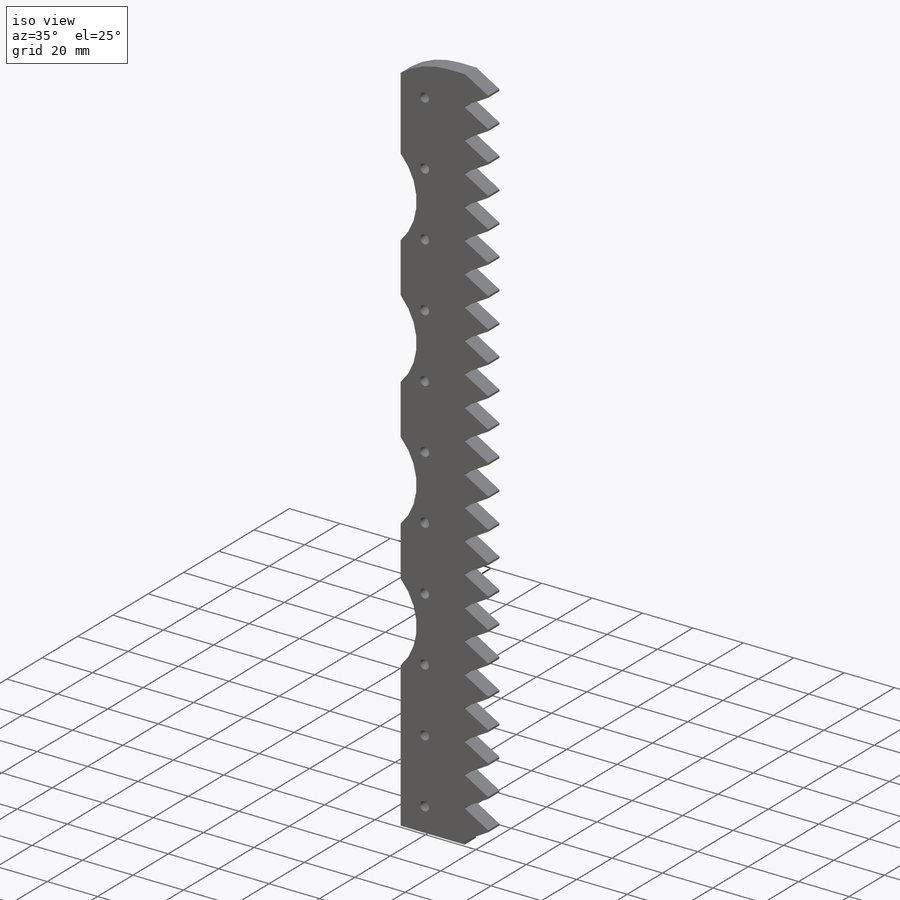
[diagram: iso view]
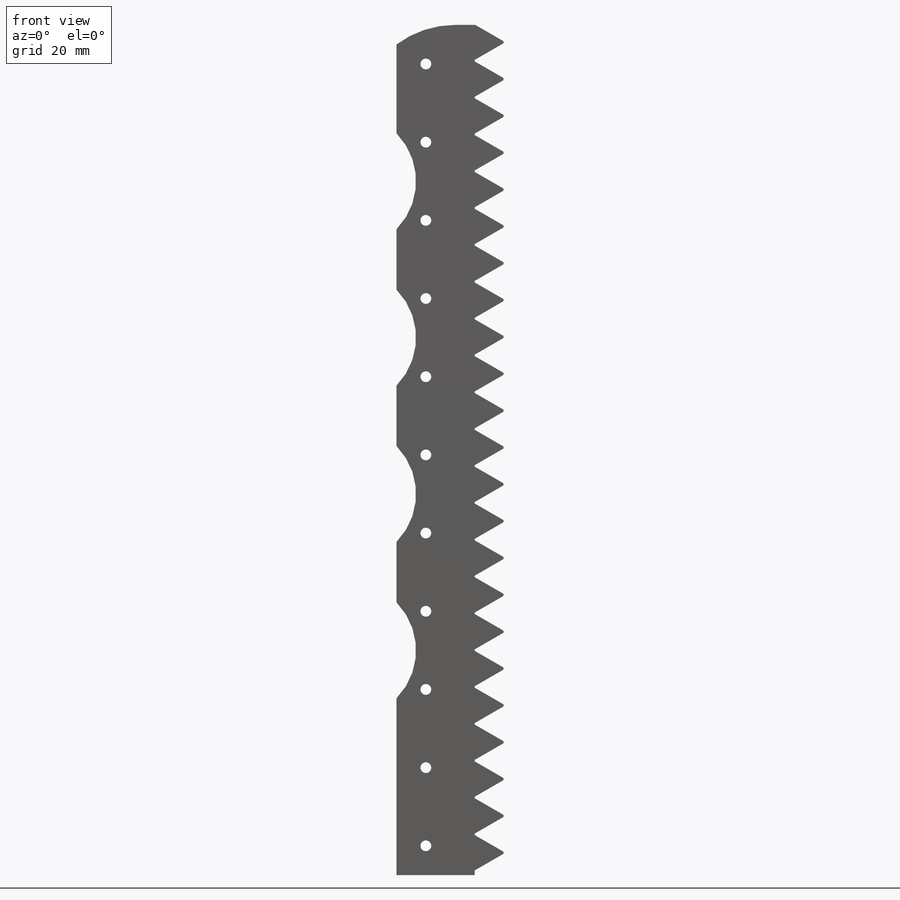
[diagram: front view]
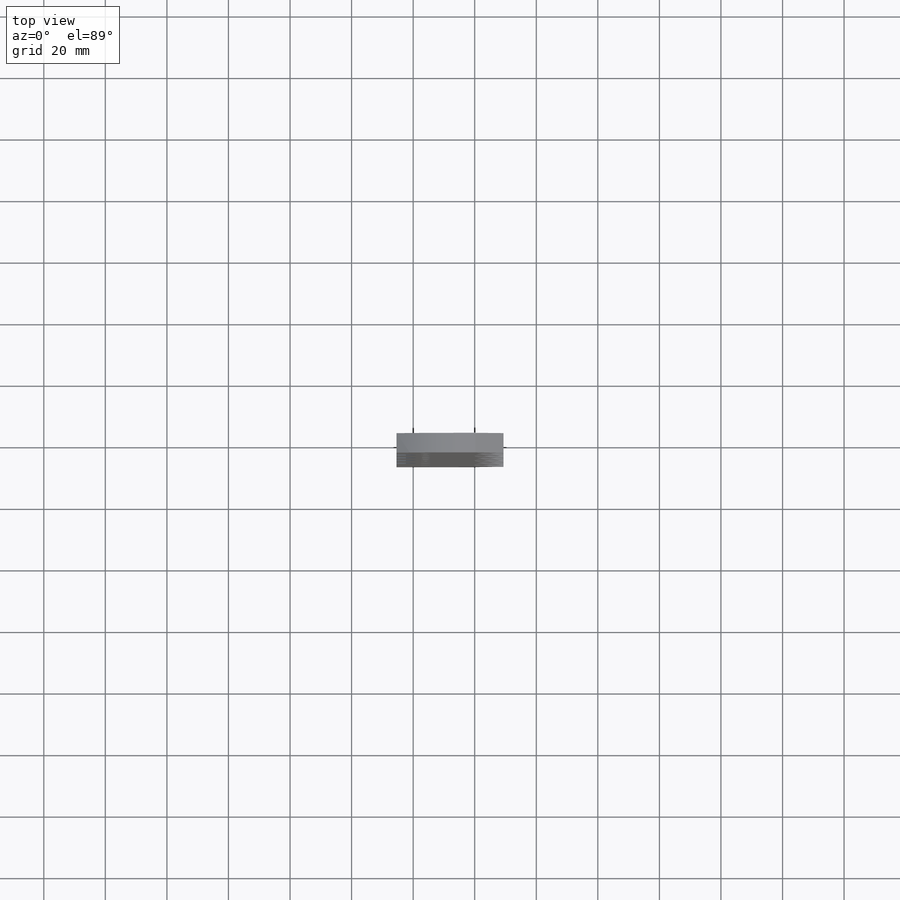
[diagram: top view]
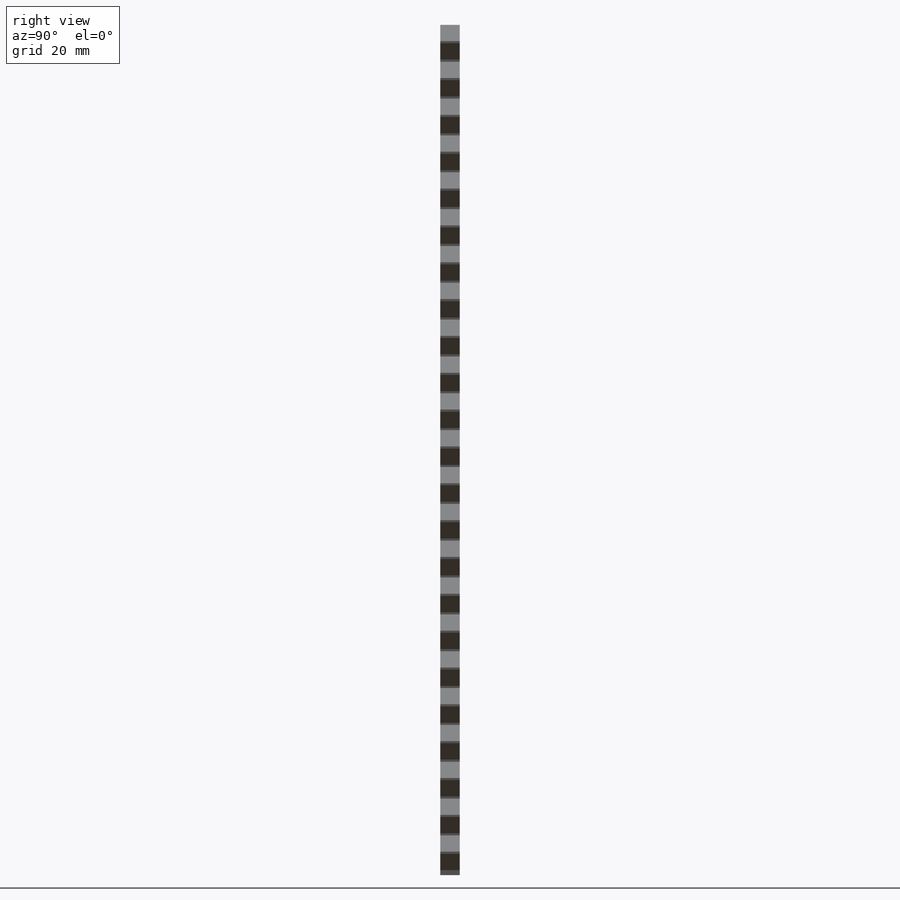
[diagram: right view]
SOLIDWORKS PART (.sldprt)
format: sldprt  version: not decoded by parser v0  size: 333,824 bytes
history: native  units: mm
features: sketch x5, cut_extrude x3, pattern_linear x3, extrude x2, material x1 (+13 scaffold rows collapsed)
feature tree (27):
  scaffold x13  (default folders/planes/origin — collapsed)
  material  "Material <not specified>"
  sketch  "Sketch1"  dims[D1=25.4mm D2=276.225mm]
  extrude  "Boss-Extrude1"  Depth=6.35mm
  sketch  "Sketch2"  dims[D1=31.75mm D2=6.35mm]
  cut_extrude  "Cut-Extrude1"  [1 undecoded]
  sketch  "Sketch3"  dims[D1=3.5mm D2=12.7mm D3=15.875mm]
  cut_extrude  "Cut-Extrude2"  [1 undecoded]
  pattern_linear  "LPattern1"  Count1=11 Count2=1 Spacing1=25.4mm Spacing2=2.54mm
  sketch  "Sketch4"  dims[D2=44.45mm D1=25.4mm]
  cut_extrude  "Cut-Extrude3"  [1 undecoded]
  pattern_linear  "LPattern2"  Count1=4 Count2=1 Spacing1=50.8mm Spacing2=2.54mm
  sketch  "Sketch5"  dims[c1.D1=~5.984734mm c1.D2=~3.972543mm c2.D2=60.0deg c2.D3=4.572mm c2.D4=4.7625mm]
  extrude  "Boss-Extrude2"  [1 undecoded]
  pattern_linear  "LPattern3"  Count1=23 Count2=1 Spacing1=11.969468mm Spacing2=2.54mm
decode coverage: 9 of 13 modeling features carry decoded parameters
note: ~ marks probable driven/reference dimensions
note: 4 parameter values undecoded
summary: no parameter record found for 4 features
note: suppression state not decoded; provenance and decode notes live in map.json
